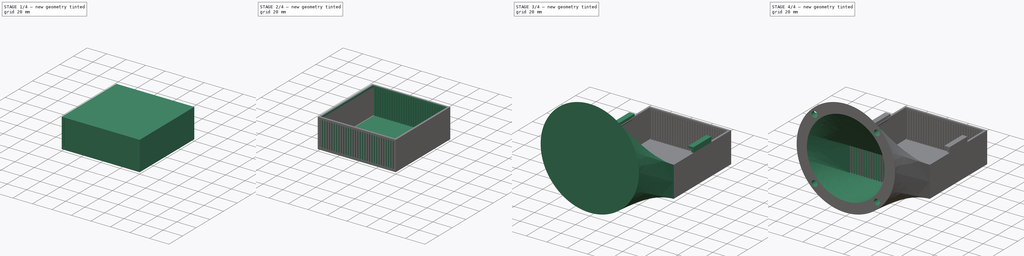
[diagram: build sequence overview — one tinted view per stage of 4, left to right]
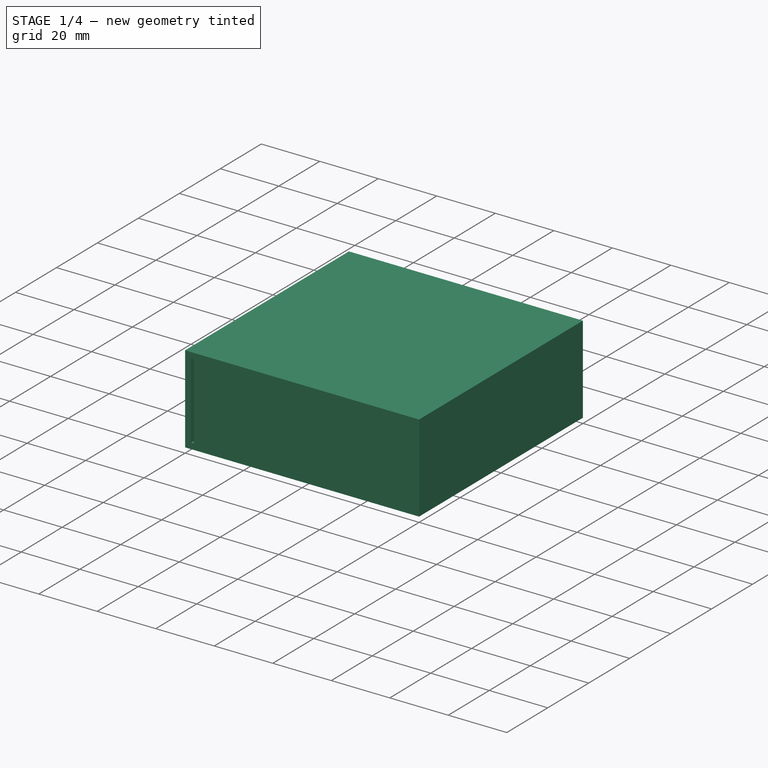
[diagram: stage 1 of 4 — iso view after this stage's code; geometry added in this stage tinted green]
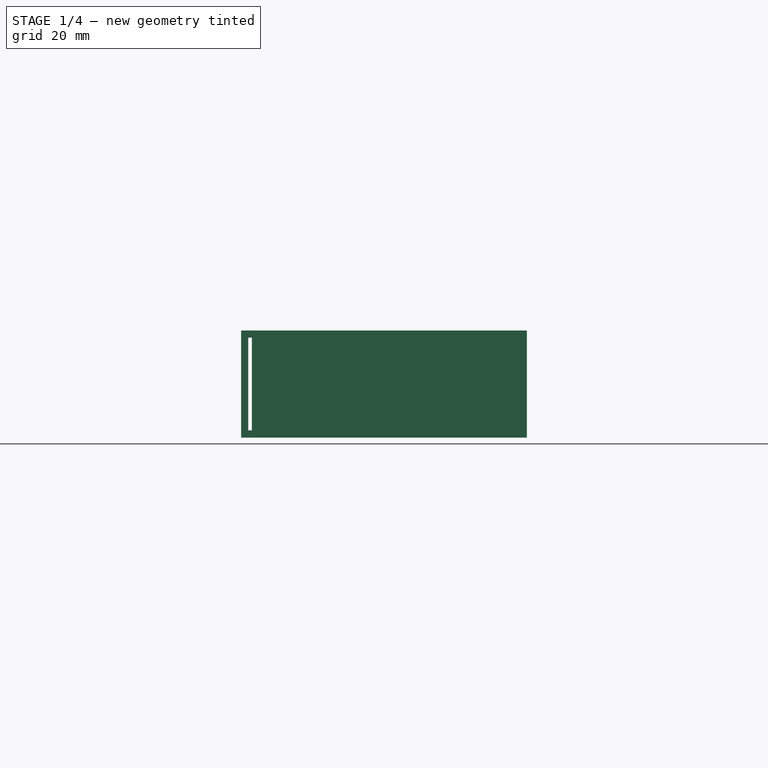
[diagram: stage 1 of 4 — front view after this stage's code; geometry added in this stage tinted green]
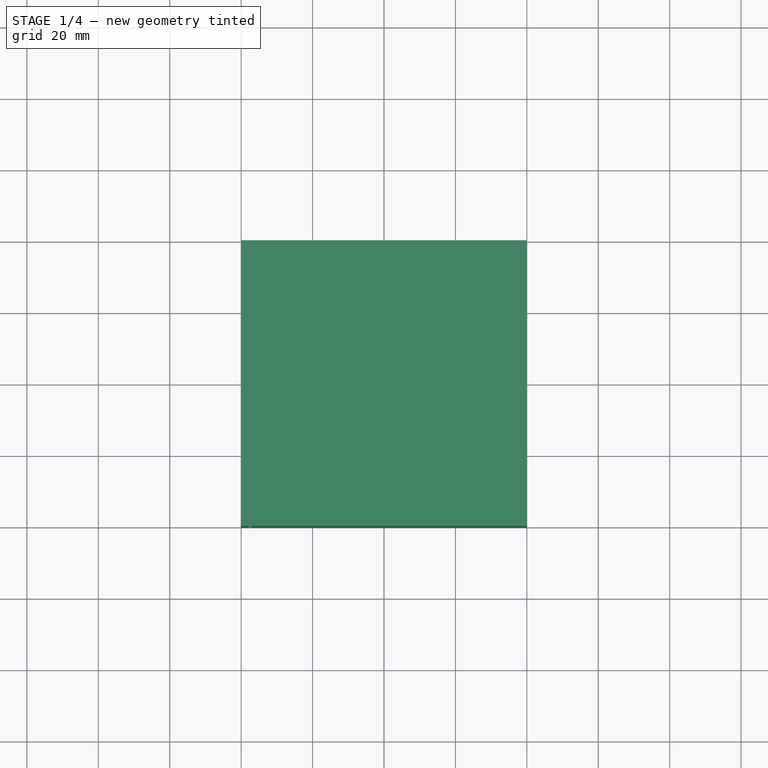
[diagram: stage 1 of 4 — top view after this stage's code; geometry added in this stage tinted green]
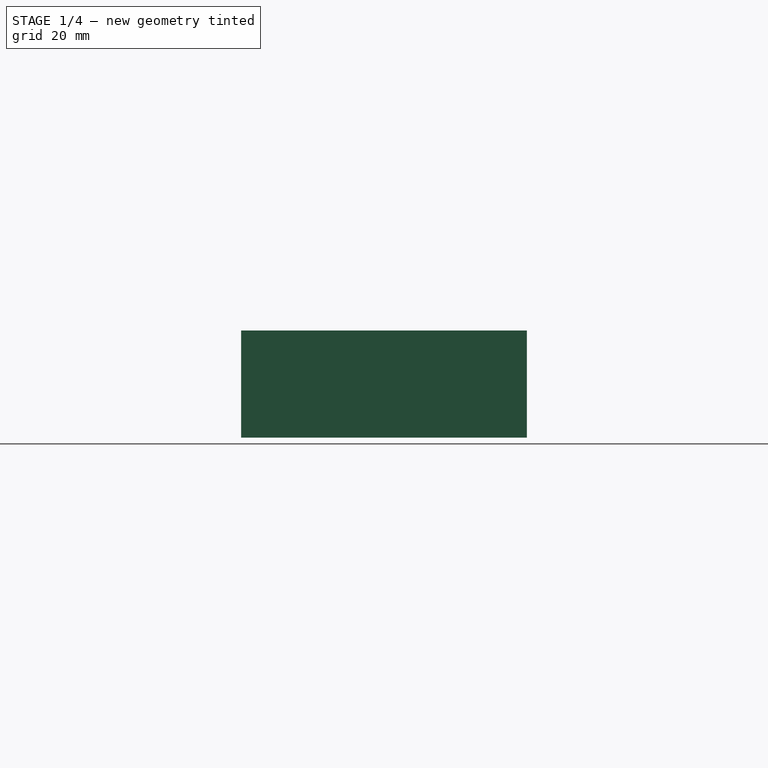
[diagram: stage 1 of 4 — right view after this stage's code; geometry added in this stage tinted green]
FCSTD DOCUMENT  (FreeCAD 0.19R24267 +99 (Git))
Label: Filiter
License: All rights reserved
LicenseURL: http://en.wikipedia.org/wiki/All_rights_reserved
objects: Sketcher::SketchObject×10, PartDesign::Pocket×3, PartDesign::Pad×2, PartDesign::LinearPattern×1, PartDesign::AdditiveLoft×1, PartDesign::SubtractiveLoft×1, PartDesign::Hole×1, PartDesign::Body×1
note: 28 computed .brp shape members not serialized (recipe doc carries the construction recipe); baked Part::Feature solids carry a one-line shape summary decoded from their .brp

FEATURE [Sketcher::SketchObject] Sketch
  FullyConstrained = true
  MapMode = 5
  Support = -> [XY_Plane]
  sketch-geometry (4):
    g0: LineSegment StartX=-40 StartY=40 StartZ=0 EndX=40 EndY=40 EndZ=0
    g1: LineSegment StartX=40 StartY=40 StartZ=0 EndX=40 EndY=-40 EndZ=0
    g2: LineSegment StartX=40 StartY=-40 StartZ=0 EndX=-40 EndY=-40 EndZ=0
    g3: LineSegment StartX=-40 StartY=-40 StartZ=0 EndX=-40 EndY=40 EndZ=0
  constraints (10):
    c: Coincident(g0,g1)
    c: Coincident(g1,g2)
    c: Coincident(g2,g3)
    c: Coincident(g3,g0)
    c: Horizontal(g2)
    c: Vertical(g3)
    c: Symmetric(g0,g0,g-2)
    c: Symmetric(g0,g1,g-1)
    c: Distance(g1) = 80
    c: Distance(g0) = 80
FEATURE [PartDesign::Pad] Pad
  Direction = (1,1,1)
  Length = 30
  Length2 = 100
  Profile = -> Sketch
  Type = 0
FEATURE [Sketcher::SketchObject] Sketch001
  ExternalGeometry = -> [Pad]
  FullyConstrained = true
  MapMode = 5
  Placement = pos=(0,-40,0) rot=(1,0,0;1.5708rad)
  Support = -> [Pad]
  sketch-geometry (4):
    g0: LineSegment StartX=-38 StartY=28 StartZ=0 EndX=-37 EndY=28 EndZ=0
    g1: LineSegment StartX=-37 StartY=28 StartZ=0 EndX=-37 EndY=2 EndZ=0
    g2: LineSegment StartX=-37 StartY=2 StartZ=0 EndX=-38 EndY=2 EndZ=0
    g3: LineSegment StartX=-38 StartY=2 StartZ=0 EndX=-38 EndY=28 EndZ=0
  constraints (12):
    c: Coincident(g0,g1)
    c: Coincident(g1,g2)
    c: Coincident(g2,g3)
    c: Coincident(g3,g0)
    c: Horizontal(g0)
    c: Horizontal(g2)
    c: Vertical(g1)
    c: Vertical(g3)
    c: Distance(g0) = 1
    c: Distance(g3) = 26
    c: Distance(g0,g-3) = 2
    c: DistanceY(g0,g-3) = 2
FEATURE [PartDesign::Pocket] Pocket
  BaseFeature = -> Pad
  Length = 5
  Length2 = 100
  Profile = -> Sketch001
  Type = 1
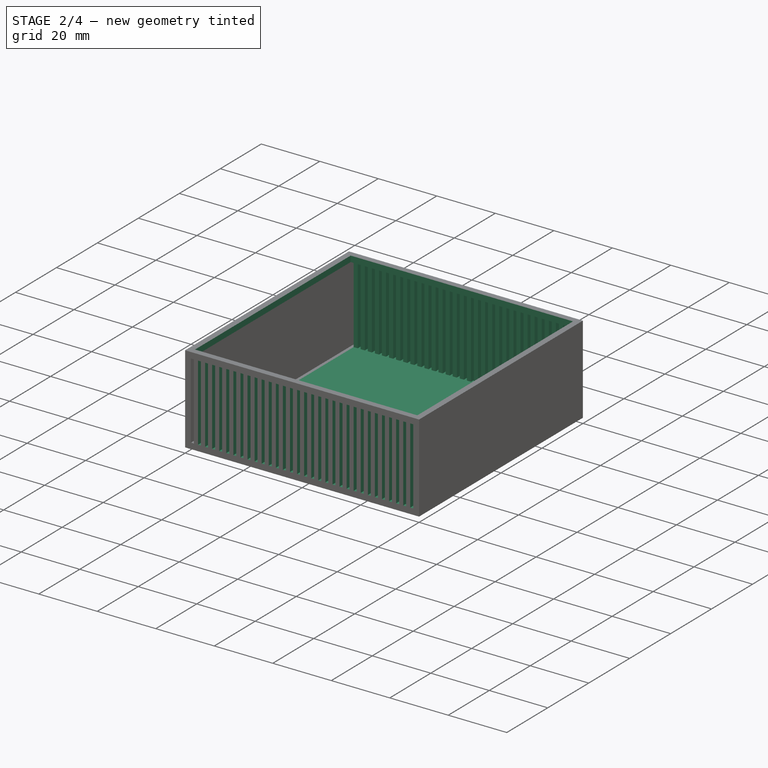
[diagram: stage 2 of 4 — iso view after this stage's code; geometry added in this stage tinted green]
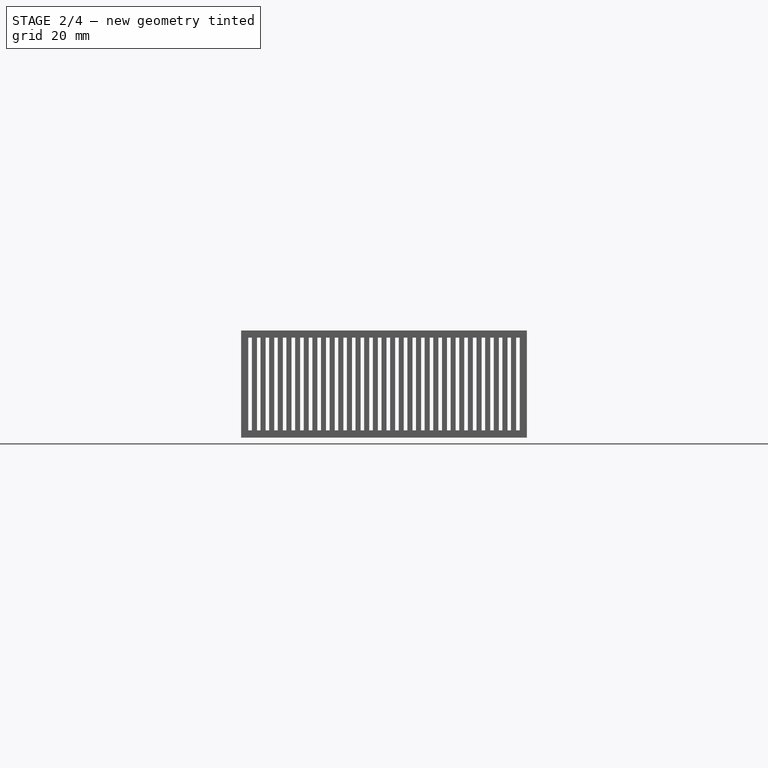
[diagram: stage 2 of 4 — front view after this stage's code; geometry added in this stage tinted green]
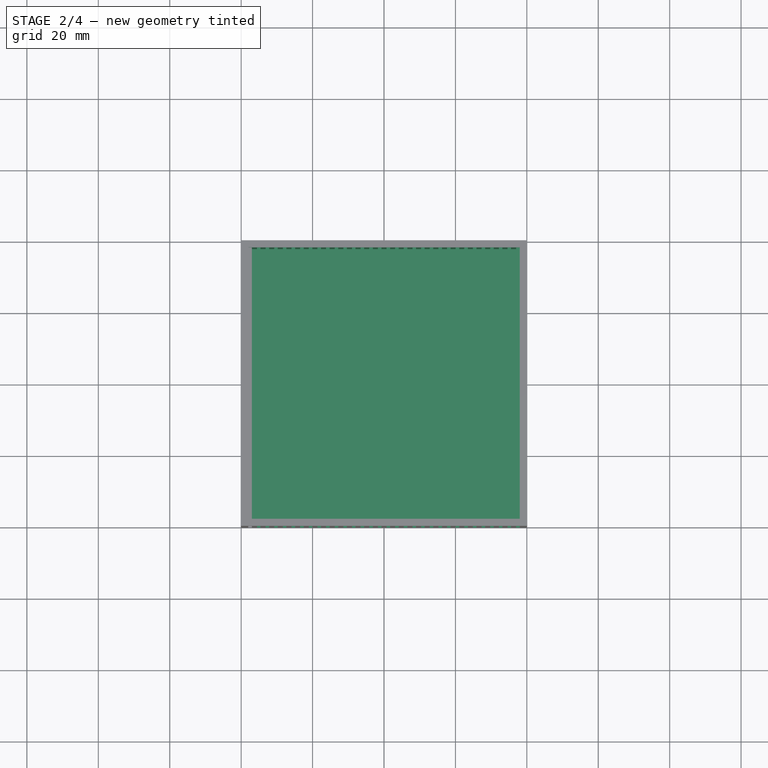
[diagram: stage 2 of 4 — top view after this stage's code; geometry added in this stage tinted green]
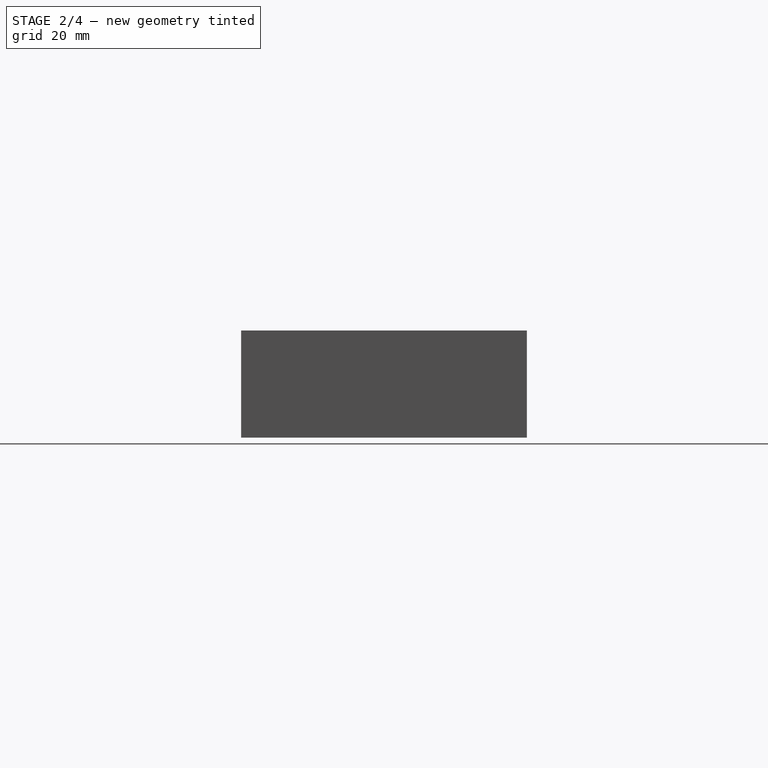
[diagram: stage 2 of 4 — right view after this stage's code; geometry added in this stage tinted green]
FEATURE [PartDesign::LinearPattern] LinearPattern
  BaseFeature = -> Pocket
  Direction = -> Sketch001 [H_Axis]
  Length = 75
  Occurrences = 32
  Originals = -> [Pocket]
FEATURE [Sketcher::SketchObject] Sketch002
  FullyConstrained = true
  MapMode = 5
  Placement = pos=(0,0,30) rot=(0,0,1;0rad)
  Support = -> [LinearPattern]
  sketch-geometry (4):
    g0: LineSegment StartX=-38 StartY=38 StartZ=0 EndX=38 EndY=38 EndZ=0
    g1: LineSegment StartX=38 StartY=38 StartZ=0 EndX=38 EndY=-38 EndZ=0
    g2: LineSegment StartX=38 StartY=-38 StartZ=0 EndX=-38 EndY=-38 EndZ=0
    g3: LineSegment StartX=-38 StartY=-38 StartZ=0 EndX=-38 EndY=38 EndZ=0
  constraints (10):
    c: Coincident(g0,g1)
    c: Coincident(g1,g2)
    c: Coincident(g2,g3)
    c: Coincident(g3,g0)
    c: Horizontal(g2)
    c: Vertical(g3)
    c: Symmetric(g0,g0,g-2)
    c: Symmetric(g0,g1,g-1)
    c: Distance(g0) = 76
    c: Distance(g1) = 76
FEATURE [PartDesign::Pocket] Pocket001
  BaseFeature = -> LinearPattern
  Length = 28
  Length2 = 100
  Profile = -> Sketch002
  Type = 0
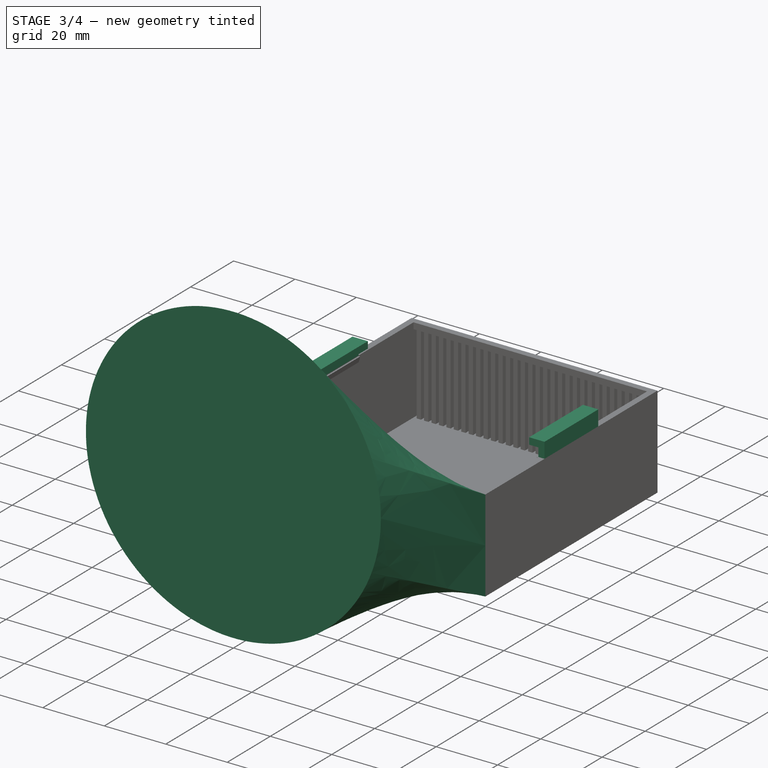
[diagram: stage 3 of 4 — iso view after this stage's code; geometry added in this stage tinted green]
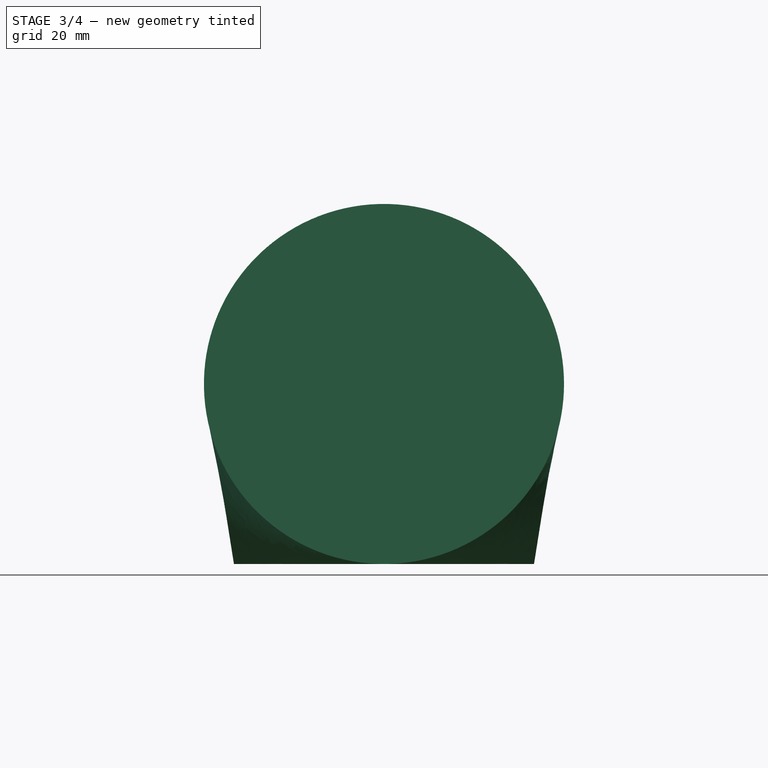
[diagram: stage 3 of 4 — front view after this stage's code; geometry added in this stage tinted green]
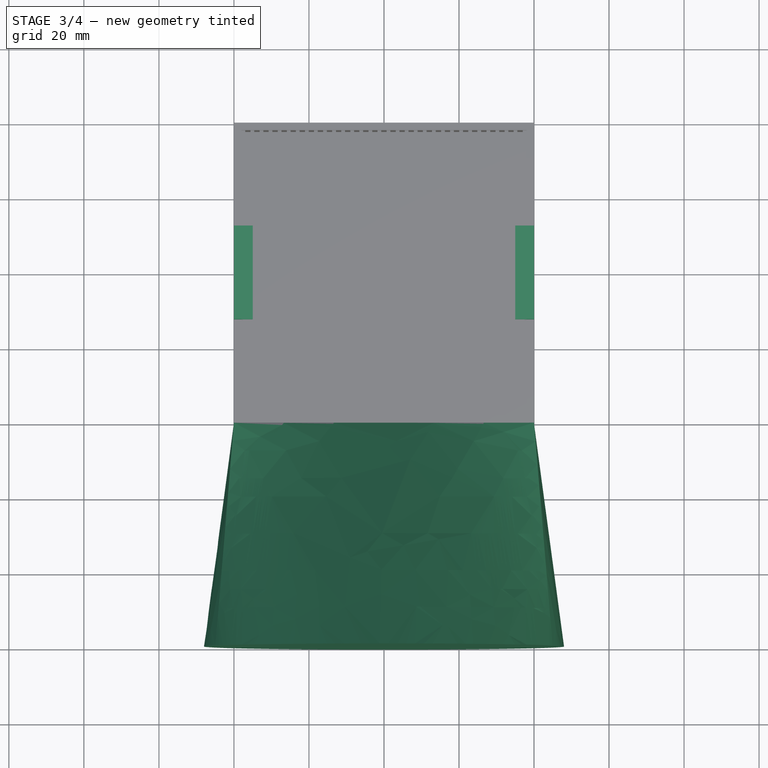
[diagram: stage 3 of 4 — top view after this stage's code; geometry added in this stage tinted green]
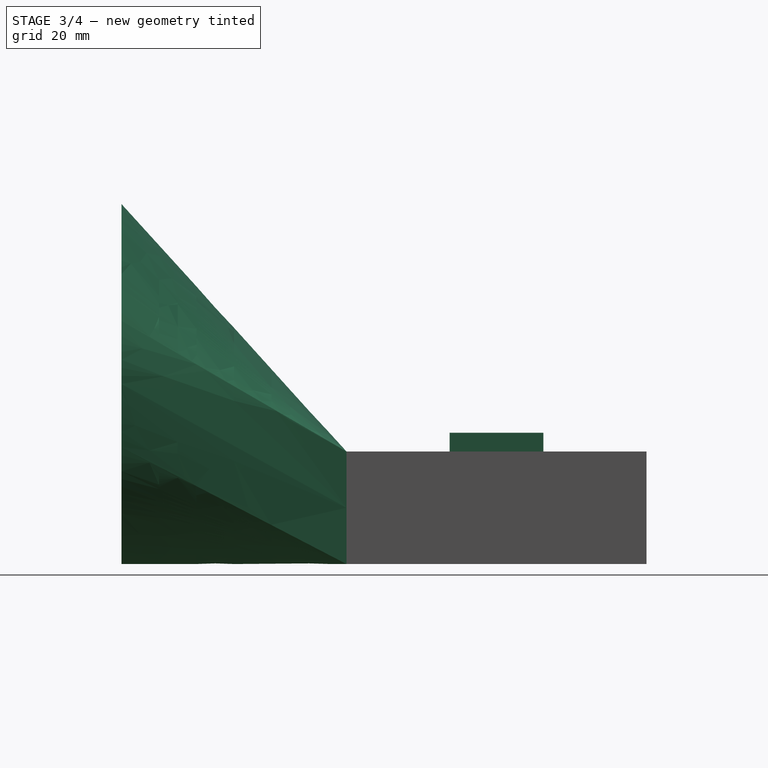
[diagram: stage 3 of 4 — right view after this stage's code; geometry added in this stage tinted green]
FEATURE [Sketcher::SketchObject] Sketch003
  ExternalGeometry = -> [Pocket001]
  FullyConstrained = true
  MapMode = 5
  Placement = pos=(0,0,30) rot=(0,0,1;0rad)
  Support = -> [Pocket001]
  sketch-geometry (4):
    g0: LineSegment StartX=-40 StartY=12.5 StartZ=0 EndX=40 EndY=12.5 EndZ=0
    g1: LineSegment StartX=40 StartY=12.5 StartZ=0 EndX=40 EndY=-12.5 EndZ=0
    g2: LineSegment StartX=40 StartY=-12.5 StartZ=0 EndX=-40 EndY=-12.5 EndZ=0
    g3: LineSegment StartX=-40 StartY=-12.5 StartZ=0 EndX=-40 EndY=12.5 EndZ=0
  constraints (11):
    c: Coincident(g0,g1)
    c: Coincident(g1,g2)
    c: Coincident(g2,g3)
    c: Coincident(g3,g0)
    c: Horizontal(g0)
    c: Horizontal(g2)
    c: Vertical(g1)
    c: PointOnObject(g0,g-4)
    c: PointOnObject(g0,g-3)
    c: Symmetric(g0,g2,g-1)
    c: Distance(g3) = 25
FEATURE [PartDesign::Pad] Pad001
  BaseFeature = -> Pocket001
  Direction = (1,1,1)
  Length = 5
  Length2 = 2
  Profile = -> Sketch003
  Type = 4
FEATURE [Sketcher::SketchObject] Sketch004
  FullyConstrained = true
  MapMode = 5
  Placement = pos=(0,-12.5,0) rot=(1,0,0;1.5708rad)
  Support = -> [Pad001]
  sketch-geometry (12):
    g0: LineSegment StartX=-38 StartY=27.9636 StartZ=0 EndX=-37.5 EndY=29.8236 EndZ=0
    g1: LineSegment StartX=-37.5 StartY=29.8236 StartZ=0 EndX=-38 EndY=29.8236 EndZ=0
    g2: LineSegment StartX=-38 StartY=29.8236 StartZ=0 EndX=-38 EndY=32.8236 EndZ=0
    g3: LineSegment StartX=38 StartY=32.8236 StartZ=0 EndX=38 EndY=29.8236 EndZ=0
    g4: LineSegment StartX=37.5 StartY=29.8236 StartZ=0 EndX=38 EndY=27.9636 EndZ=0
    g5: LineSegment StartX=38 StartY=27.9636 StartZ=0 EndX=-38 EndY=27.9636 EndZ=0
    g6: LineSegment StartX=-38 StartY=32.8236 StartZ=0 EndX=-35 EndY=32.8236 EndZ=0
    g7: LineSegment StartX=-35 StartY=32.8236 StartZ=0 EndX=-35 EndY=35.9636 EndZ=0
    g8: LineSegment StartX=-35 StartY=35.9636 StartZ=0 EndX=35 EndY=35.9636 EndZ=0
    g9: LineSegment StartX=35 StartY=35.9636 StartZ=0 EndX=35 EndY=32.8236 EndZ=0
    g10: LineSegment StartX=35 StartY=32.8236 StartZ=0 EndX=38 EndY=32.8236 EndZ=0
    g11: LineSegment StartX=37.5 StartY=29.8236 StartZ=0 EndX=38 EndY=29.8236 EndZ=0
  constraints (32):
    c: Coincident(g0,g1)
    c: Horizontal(g1)
    c: Coincident(g1,g2)
    c: Vertical(g2)
    c: Vertical(g3)
    c: Coincident(g4,g5)
    c: Coincident(g5,g0)
    c: Coincident(g2,g6)
    c: Horizontal(g6)
    c: Coincident(g6,g7)
    c: Coincident(g7,g8)
    c: Coincident(g8,g9)
    c: Vertical(g9)
    c: Coincident(g9,g10)
    c: Coincident(g10,g3)
    c: Horizontal(g10)
    c: Symmetric(g7,g8,g-2)
    c: Vertical(g7)
    c: Symmetric(g2,g3,g-2)
    c: Symmetric(g4,g0,g-2)
    c: Symmetric(g0,g4,g-2)
    c: Distance(g8) = 70
    c: Distance(g6) = 3
    c: Distance(g2) = 3
    c: Distance(g1) = 0.5
    c: Distance(g5) = 76
    c: Distance(g7,g5) = 8
    c: Distance(g9) = 3.14
    c: Horizontal(g1,g3)
    c: Coincident(g11,g4)
    c: Coincident(g11,g3)
    c: DistanceY(g6) = 32.8236
FEATURE [PartDesign::Pocket] Pocket002
  BaseFeature = -> Pad001
  Length = 27
  Length2 = 100
  Profile = -> Sketch004
  Type = 0
FEATURE [Sketcher::SketchObject] Sketch005
  FullyConstrained = true
  MapMode = 5
  Placement = pos=(0,-40,0) rot=(1,0,0;1.5708rad)
  Support = -> [Pocket002]
  sketch-geometry (4):
    g0: LineSegment StartX=-40 StartY=30 StartZ=0 EndX=40 EndY=30 EndZ=0
    g1: LineSegment StartX=40 StartY=30 StartZ=0 EndX=40 EndY=0 EndZ=0
    g2: LineSegment StartX=40 StartY=0 StartZ=0 EndX=-40 EndY=0 EndZ=0
    g3: LineSegment StartX=-40 StartY=0 StartZ=0 EndX=-40 EndY=30 EndZ=0
  constraints (12):
    c: Coincident(g0,g1)
    c: Coincident(g1,g2)
    c: Coincident(g2,g3)
    c: Coincident(g3,g0)
    c: Horizontal(g0)
    c: Horizontal(g2)
    c: Vertical(g1)
    c: Vertical(g3)
    c: Distance(g0) = 80
    c: Distance(g3) = 30
    c: Distance(g2,g-1) = 40
    c: PointOnObject(g2,g-1)
FEATURE [Sketcher::SketchObject] Sketch006
  AttachmentOffset = pos=(0,0,100) rot=(0,0,1;0rad)
  FullyConstrained = true
  MapMode = 5
  Placement = pos=(0,-100,-2.22e-14) rot=(1,0,0;1.5708rad)
  Support = -> [XZ_Plane]
  sketch-geometry (1):
    g0: Circle CenterX=0 CenterY=48 CenterZ=0 NormalX=0 NormalY=0 NormalZ=1 AngleXU=0 Radius=48
  constraints (3):
    c: PointOnObject(g0,g-2)
    c: Distance(g0,g-1) = 48
    c: Radius(g0) = 48
FEATURE [PartDesign::AdditiveLoft] AdditiveLoft
  BaseFeature = -> Pocket002
  Closed = false
  Profile = -> Sketch005
  Ruled = false
  Sections = -> [Sketch006]
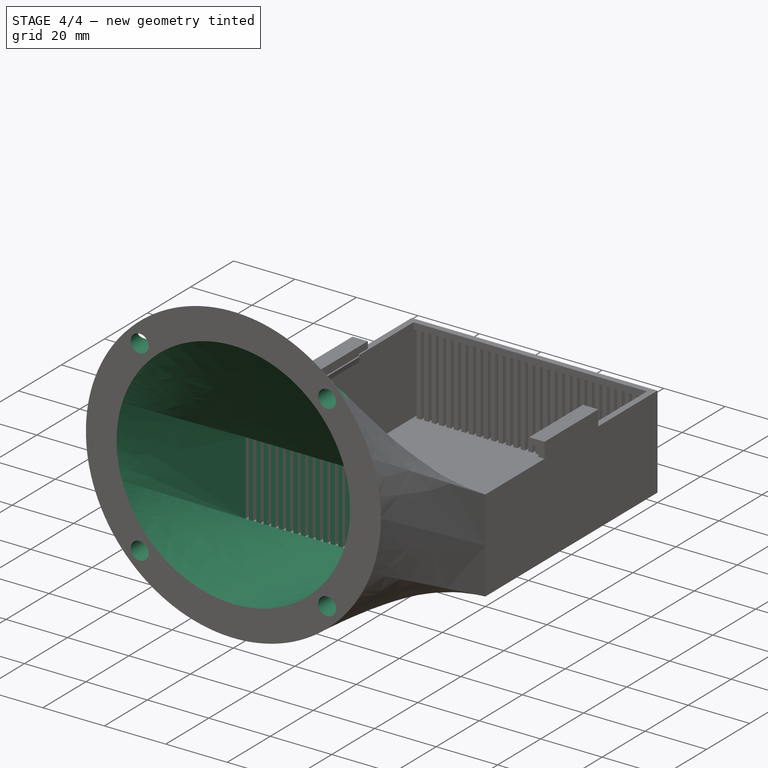
[diagram: stage 4 of 4 — iso view after this stage's code; geometry added in this stage tinted green]
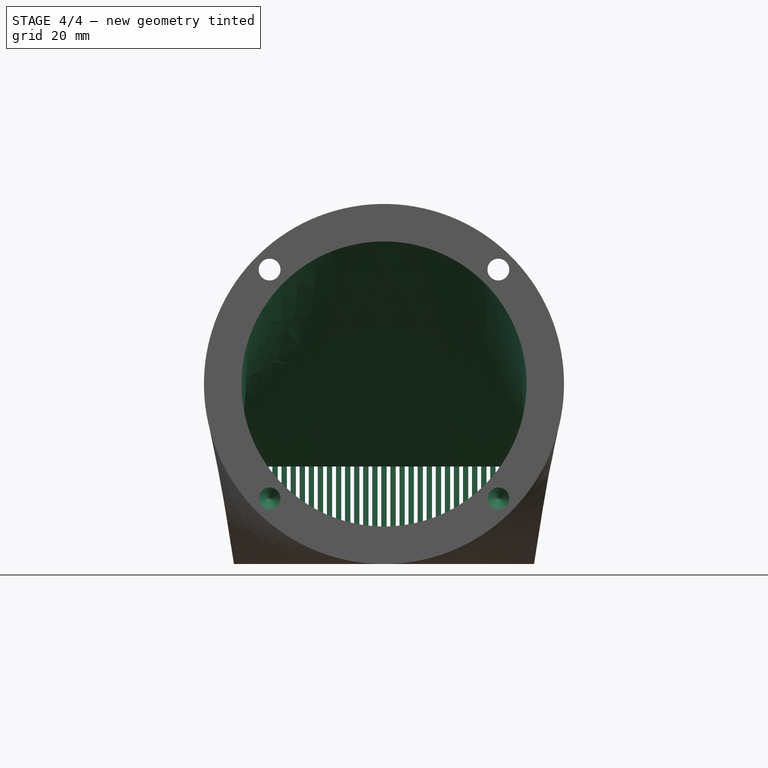
[diagram: stage 4 of 4 — front view after this stage's code; geometry added in this stage tinted green]
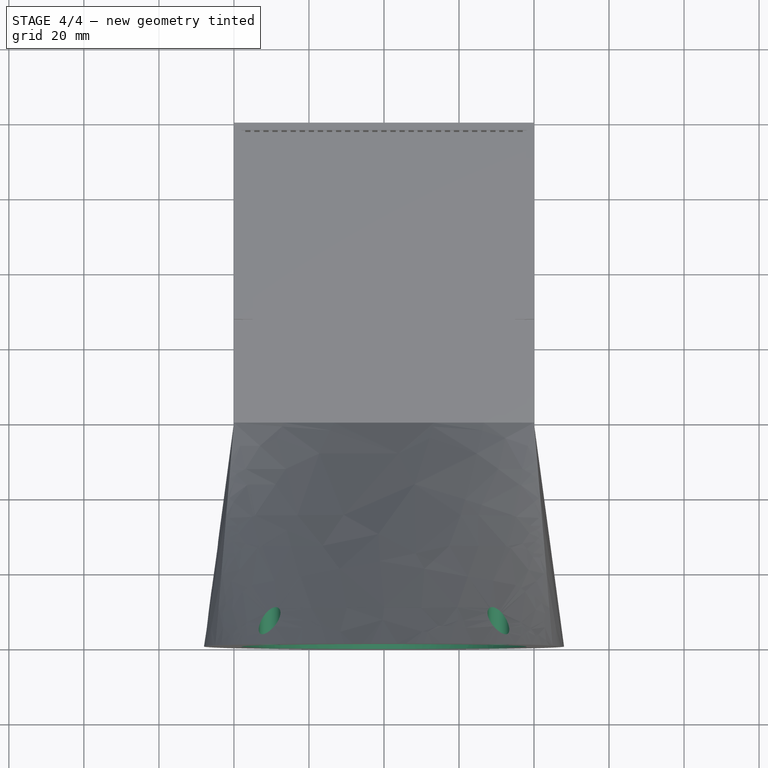
[diagram: stage 4 of 4 — top view after this stage's code; geometry added in this stage tinted green]
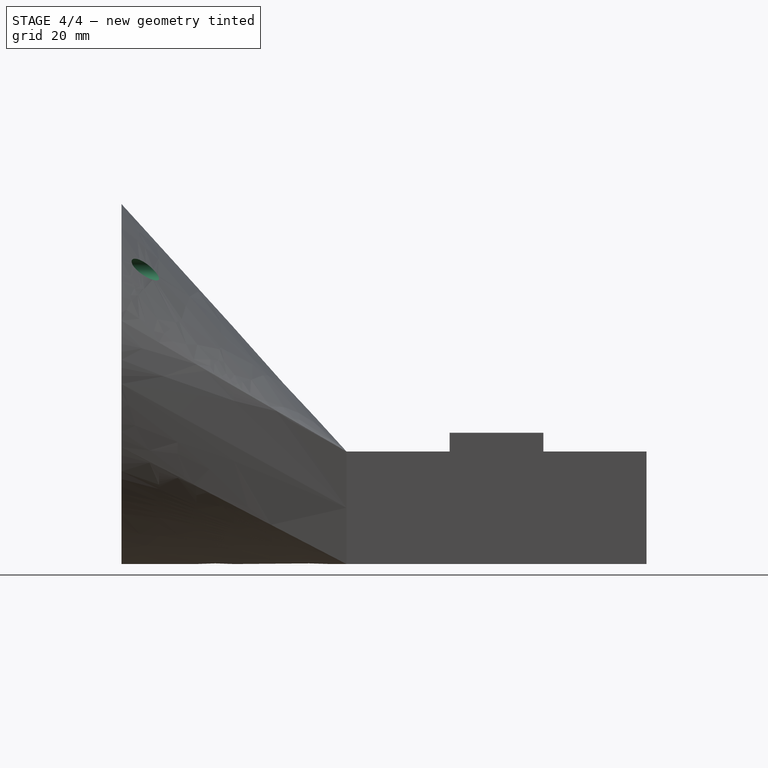
[diagram: stage 4 of 4 — right view after this stage's code; geometry added in this stage tinted green]
FEATURE [Sketcher::SketchObject] Sketch007
  FullyConstrained = true
  MapMode = 5
  Placement = pos=(-9.9e-15,-100,-1.71e-14) rot=(1,0,0;1.5708rad)
  Support = -> [AdditiveLoft]
  sketch-geometry (1):
    g0: Circle CenterX=0 CenterY=48 CenterZ=0 NormalX=0 NormalY=0 NormalZ=1 AngleXU=0 Radius=38
  constraints (3):
    c: PointOnObject(g0,g-2)
    c: Distance(g0,g-1) = 48
    c: Radius(g0) = 38
FEATURE [Sketcher::SketchObject] Sketch008
  AttachmentOffset = pos=(0,0,40) rot=(0,0,1;0rad)
  FullyConstrained = true
  MapMode = 5
  Placement = pos=(0,-40,-8.9e-15) rot=(1,0,0;1.5708rad)
  Support = -> [XZ_Plane]
  sketch-geometry (4):
    g0: LineSegment StartX=-38 StartY=26 StartZ=0 EndX=38 EndY=26 EndZ=0
    g1: LineSegment StartX=38 StartY=26 StartZ=0 EndX=38 EndY=2 EndZ=0
    g2: LineSegment StartX=38 StartY=2 StartZ=0 EndX=-38 EndY=2 EndZ=0
    g3: LineSegment StartX=-38 StartY=2 StartZ=0 EndX=-38 EndY=26 EndZ=0
  constraints (11):
    c: Coincident(g0,g1)
    c: Coincident(g1,g2)
    c: Coincident(g2,g3)
    c: Coincident(g3,g0)
    c: Horizontal(g2)
    c: Vertical(g1)
    c: Vertical(g3)
    c: Distance(g0) = 76
    c: Distance(g1) = 24
    c: Symmetric(g0,g0,g-2)
    c: Distance(g1,g-1) = 2
FEATURE [PartDesign::SubtractiveLoft] SubtractiveLoft
  BaseFeature = -> AdditiveLoft
  Closed = false
  Profile = -> Sketch007
  Ruled = false
  Sections = -> [Sketch008]
FEATURE [Sketcher::SketchObject] Sketch009
  ExternalGeometry = -> [SubtractiveLoft]
  FullyConstrained = false
  MapMode = 5
  Placement = pos=(-9.9e-15,-100,-1.71e-14) rot=(1,0,0;1.5708rad)
  Support = -> [SubtractiveLoft]
  sketch-geometry (8):
    g0: LineSegment StartX=-30.5 StartY=78.5 StartZ=0 EndX=30.5 EndY=78.5 EndZ=0
    g1: LineSegment StartX=30.5 StartY=78.5 StartZ=0 EndX=30.5 EndY=17.5 EndZ=0
    g2: LineSegment StartX=30.5 StartY=17.5 StartZ=0 EndX=-30.5 EndY=17.5 EndZ=0
    g3: LineSegment StartX=-30.5 StartY=17.5 StartZ=0 EndX=-30.5 EndY=78.5 EndZ=0
    g4: Circle CenterX=-30.5 CenterY=78.5 CenterZ=0 NormalX=0 NormalY=0 NormalZ=1 AngleXU=0 Radius=2.26399
    g5: Circle CenterX=30.5 CenterY=78.5 CenterZ=0 NormalX=0 NormalY=0 NormalZ=1 AngleXU=0 Radius=1.62198
    g6: Circle CenterX=30.5 CenterY=17.5 CenterZ=0 NormalX=0 NormalY=0 NormalZ=1 AngleXU=0 Radius=2.59119
    g7: Circle CenterX=-30.5 CenterY=17.5 CenterZ=0 NormalX=0 NormalY=0 NormalZ=1 AngleXU=0 Radius=2.43375
  constraints (14):
    c: Coincident(g0,g1)
    c: Coincident(g1,g2)
    c: Coincident(g2,g3)
    c: Coincident(g3,g0)
    c: Horizontal(g0)
    c: Vertical(g1)
    c: Symmetric(g0,g2,g-3)
    c: Symmetric(g0,g1,g-3)
    c: Equal(g0,g3)
    c: Distance(g0) = 61
    c: Coincident(g4,g0)
    c: Coincident(g5,g0)
    c: Coincident(g6,g1)
    c: Coincident(g7,g2)
FEATURE [PartDesign::Hole] Hole
  BaseFeature = -> SubtractiveLoft
  Depth = 10
  DepthType = 0
  Diameter = 5.8
  DrillForDepth = false
  DrillPoint = 1
  DrillPointAngle = 118
  HoleCutCountersinkAngle = 90
  HoleCutCustomValues = false
  HoleCutDepth = 0
  HoleCutDiameter = 6.1
  HoleCutType = 0
  ModelActualThread = false
  Profile = -> Sketch009
  Tapered = false
  TaperedAngle = 90
  ThreadAngle = 0
  ThreadClass = 0
  ThreadCutOffInner = 0
  ThreadCutOffOuter = 0
  ThreadDirection = 0
  ThreadFit = 2
  ThreadPitch = 0
  ThreadSize = 13
  ThreadType = 1
  Threaded = false
FEATURE [PartDesign::Body] Body
  Group = -> [Sketch,Pad,Sketch001,Pocket,LinearPattern,Sketch002,Pocket001,Sketch003,Pad001,Sketch004,Pocket002,Sketch005,Sketch006,AdditiveLoft,Sketch007,Sketch008,SubtractiveLoft,Sketch009,Hole]
  Origin = -> Origin
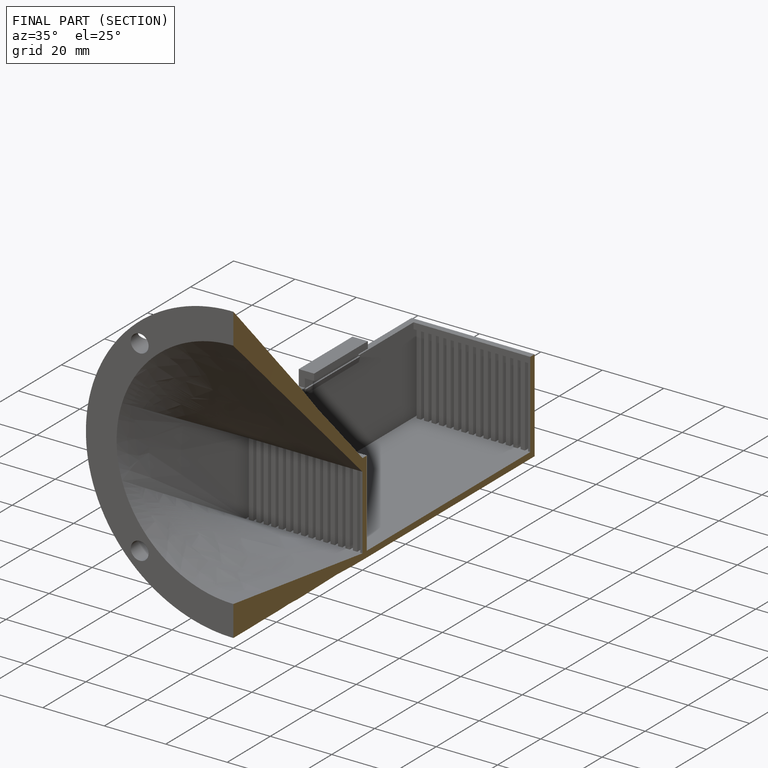
[diagram: finished part — half-section view (interior)]
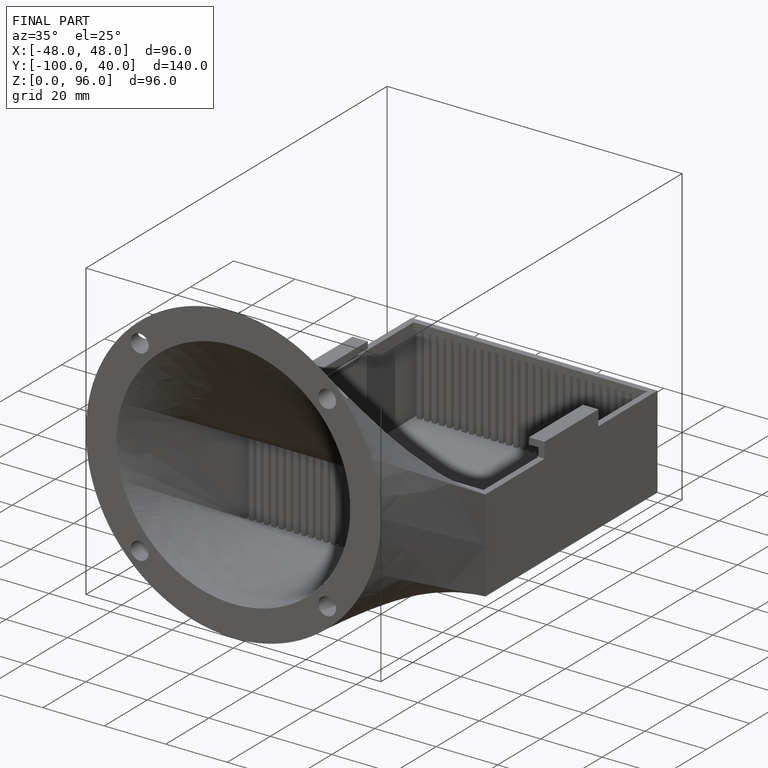
[diagram: finished part — iso view with bounding-box wireframe]
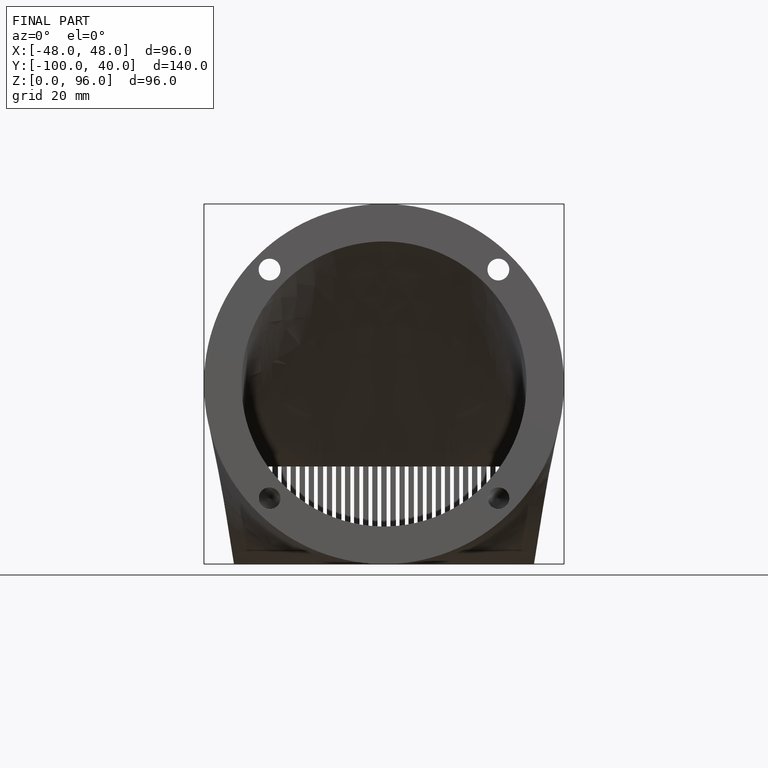
[diagram: finished part — front view with bounding-box wireframe]
